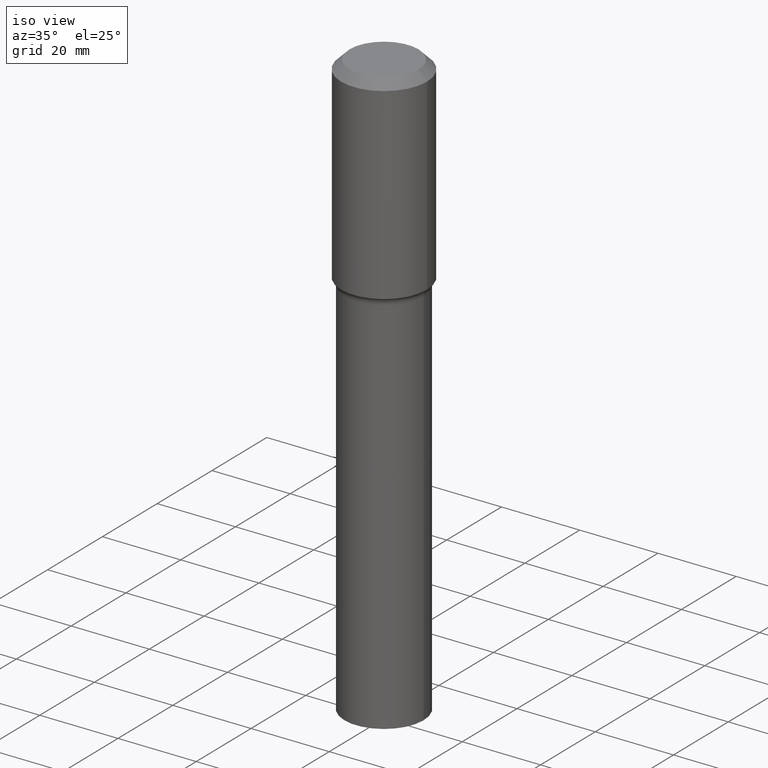
[diagram: clean part render]
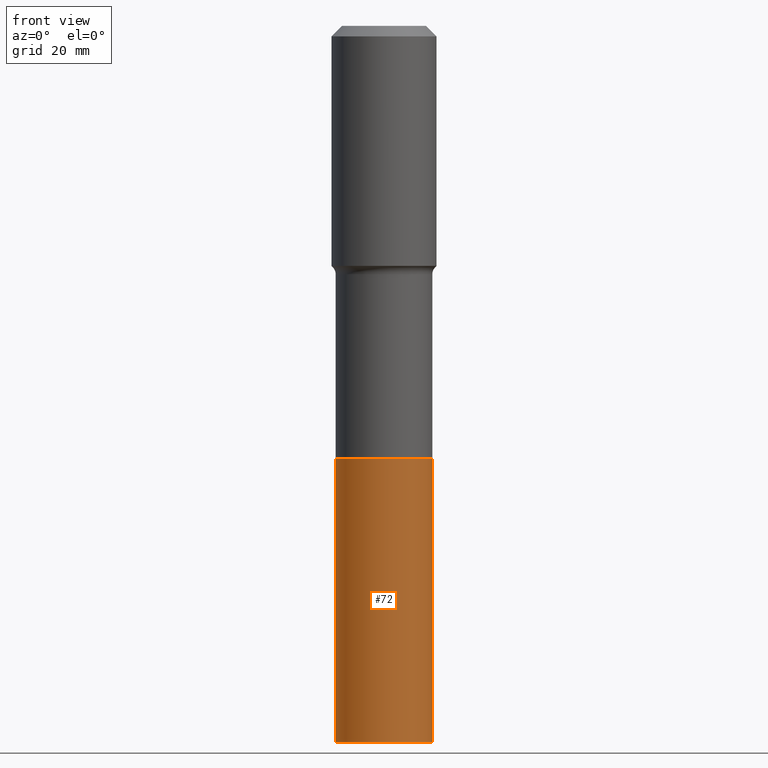
[diagram: tour spotlight — one face highlighted and labeled with its STEP entity id]
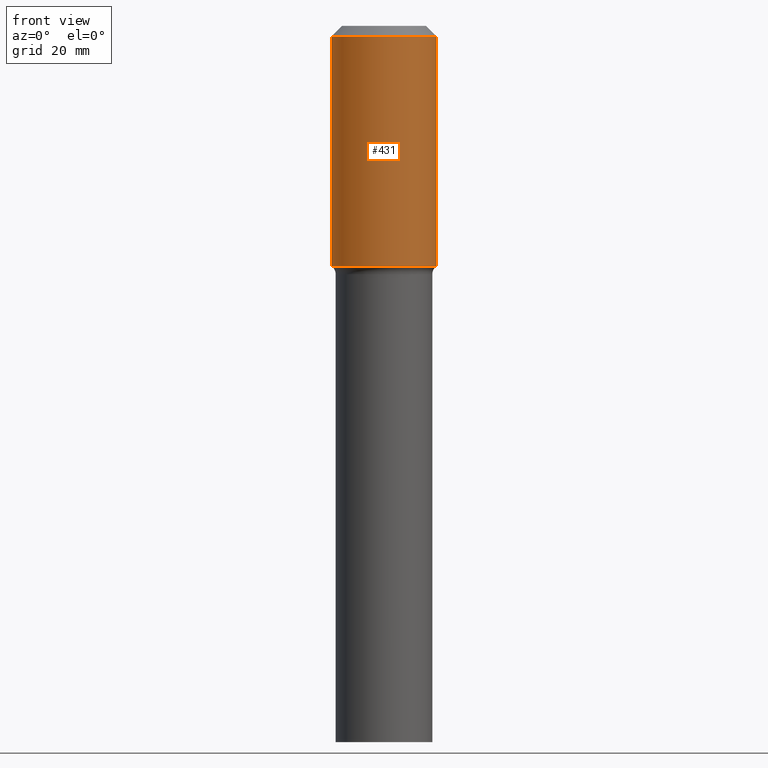
[diagram: tour spotlight — one face highlighted and labeled with its STEP entity id]
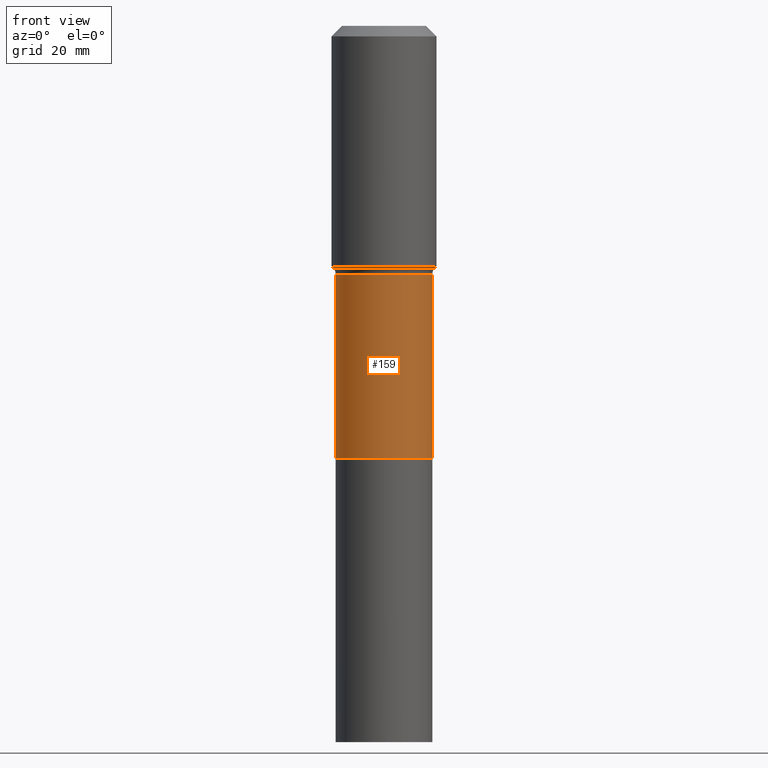
[diagram: tour spotlight — one face highlighted and labeled with its STEP entity id]
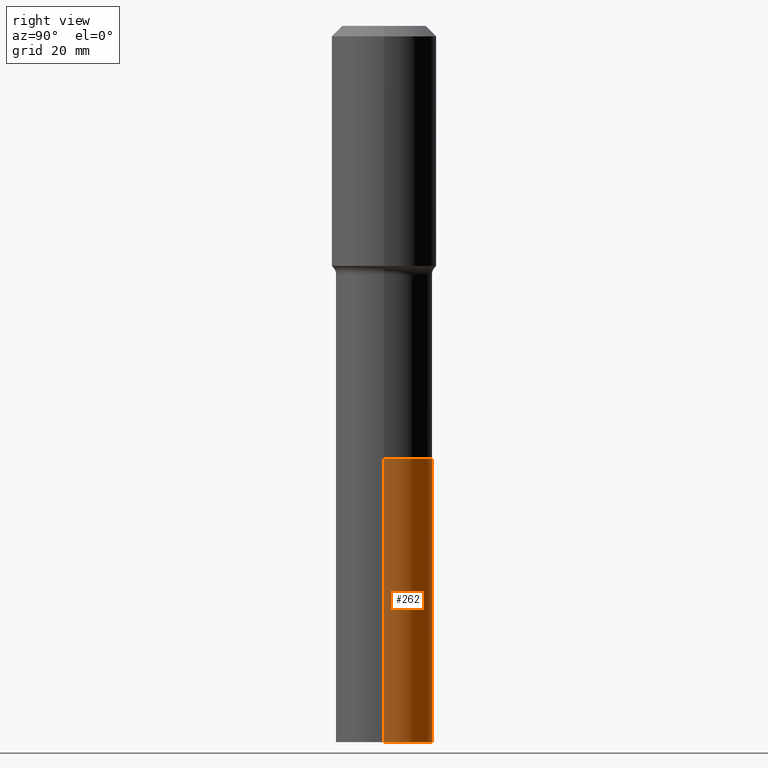
[diagram: tour spotlight — one face highlighted and labeled with its STEP entity id]
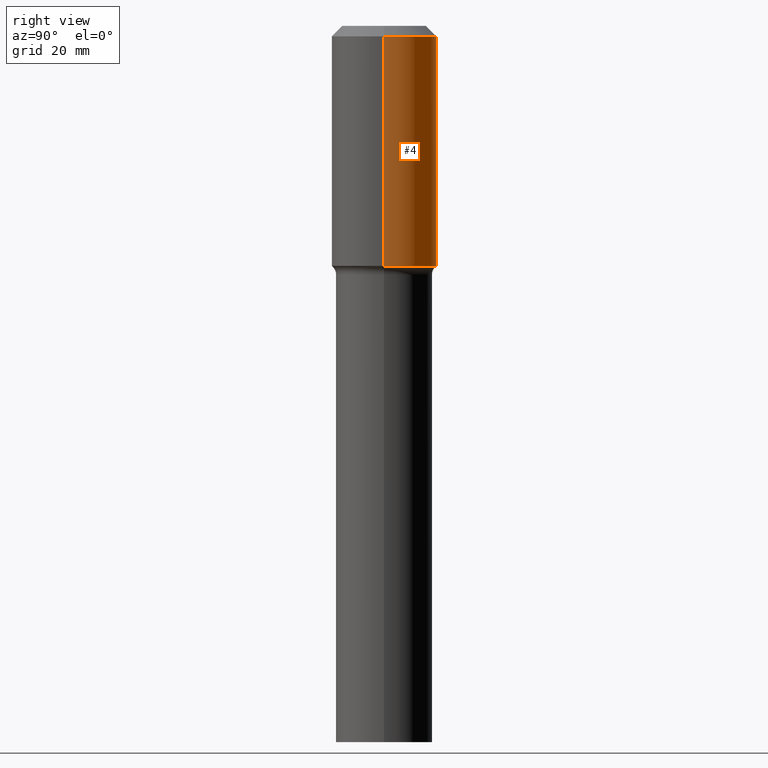
[diagram: tour spotlight — one face highlighted and labeled with its STEP entity id]
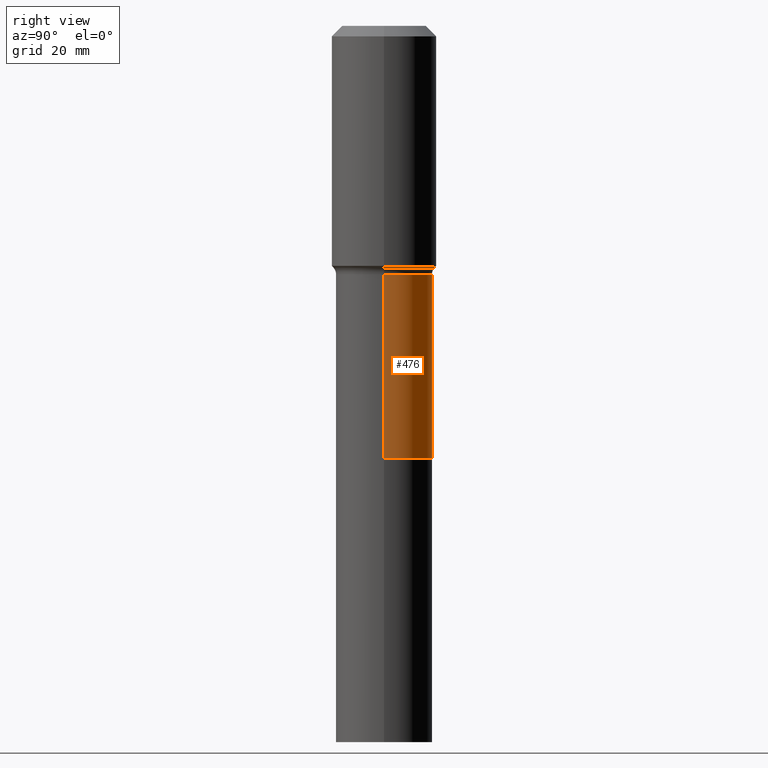
[diagram: tour spotlight — one face highlighted and labeled with its STEP entity id]
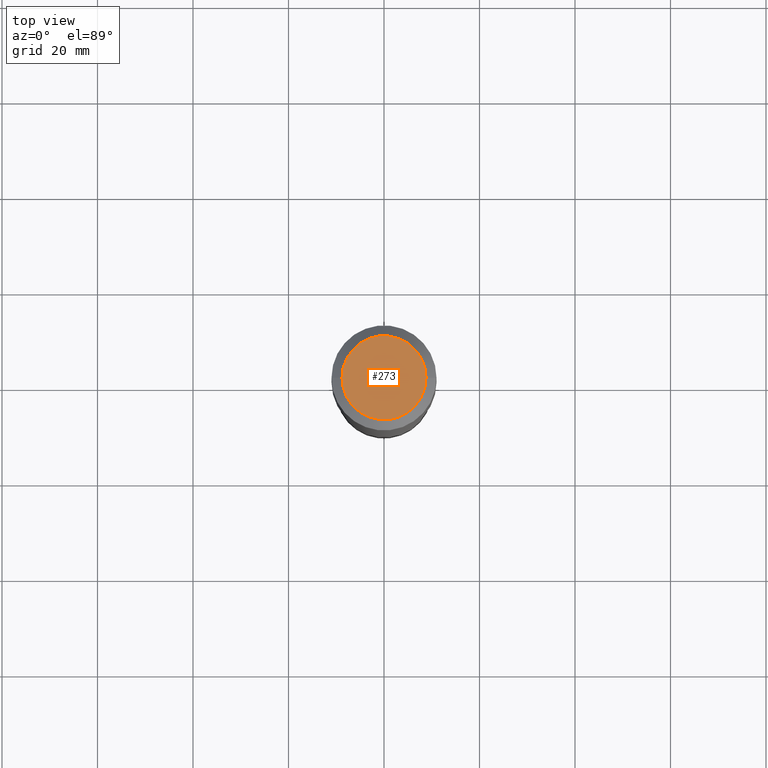
[diagram: tour spotlight — one face highlighted and labeled with its STEP entity id]
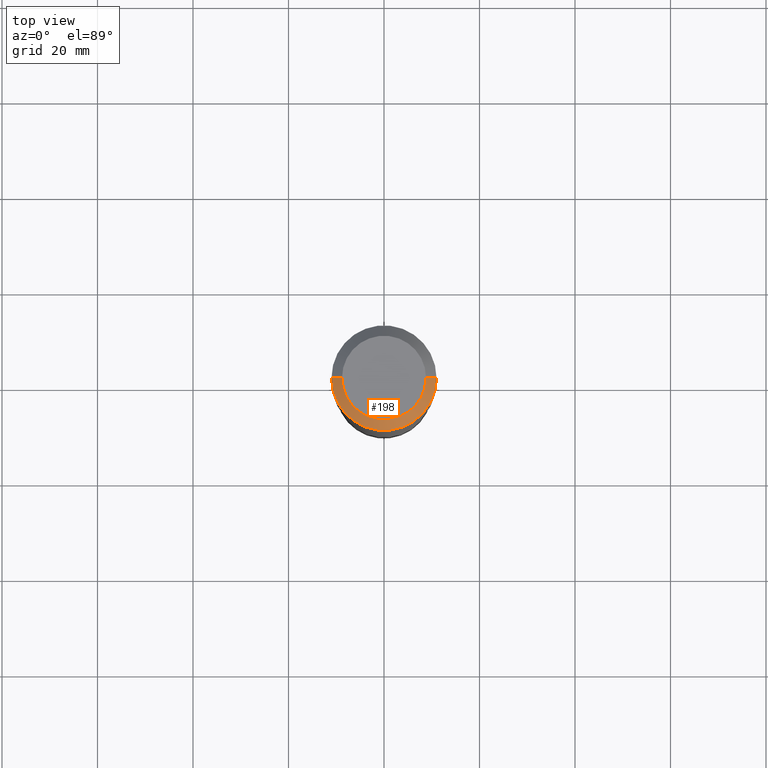
[diagram: tour spotlight — one face highlighted and labeled with its STEP entity id]
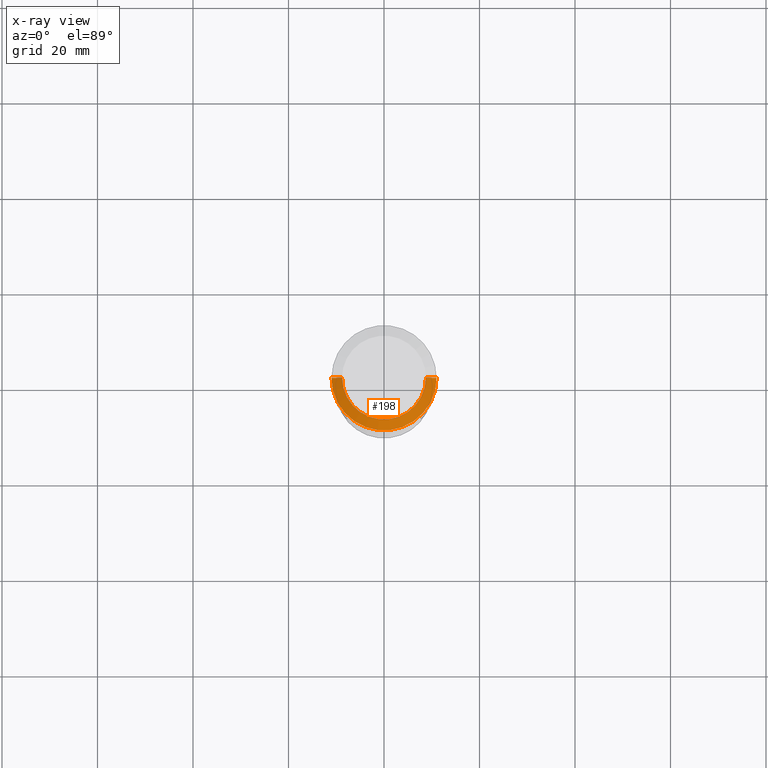
[diagram: x-ray of the same camera — body ghosted, this tour face saturated]
A machine part: a face-by-face anatomy tour. The part has 18 B-rep faces; the first image is the clean iso view, then the 8 largest visible faces are spotlighted one at a time (largest first), each with its STEP entity span.

Face 1 — front view, entity #72. In plain terms, the highlighted cylindrical surface (partial cylindrical patch) has radius 10.1206 mm, axis along (-0, 0, 1).
Definition (entity closure, byte-faithful):
#7 = EDGE_CURVE ( 'NONE', #50, #20, #483, .T. ) ;
#20 = VERTEX_POINT ( 'NONE', #220 ) ;
#50 = VERTEX_POINT ( 'NONE', #417 ) ;
#53 = VERTEX_POINT ( 'NONE', #455 ) ;
#55 = CARTESIAN_POINT ( 'NONE',  ( -0.3984500000000000264, -9.631685108364488032E-15, -3.569499999999999673 ) ) ;
#61 = ORIENTED_EDGE ( 'NONE', *, *, #415, .T. ) ;
#64 = ORIENTED_EDGE ( 'NONE', *, *, #81, .F. ) ;
#65 = CARTESIAN_POINT ( 'NONE',  ( 8.729100903677844984E-29, -1.246284263900060702E-14, -3.569499999999999673 ) ) ;
#69 = CYLINDRICAL_SURFACE ( 'NONE', #132, 0.3984500000000000264 ) ;
#72 = ADVANCED_FACE ( 'NONE', ( #429 ), #69, .T. ) ;
#81 = EDGE_CURVE ( 'NONE', #53, #50, #155, .T. ) ;
#96 = CARTESIAN_POINT ( 'NONE',  ( 0.3984500000000000264, -1.524520411792469959E-14, -3.569499999999999673 ) ) ;
#99 = DIRECTION ( 'NONE',  ( 1.000000000000000000, -6.982962677686264344E-15, 0.000000000000000000 ) ) ;
#132 = AXIS2_PLACEMENT_3D ( 'NONE', #65, #349, #99 ) ;
#143 = VERTEX_POINT ( 'NONE', #470 ) ;
#155 = LINE ( 'NONE', #55, #481 ) ;
#169 = AXIS2_PLACEMENT_3D ( 'NONE', #191, #467, #342 ) ;
#191 = CARTESIAN_POINT ( 'NONE',  ( 8.729100903677844984E-29, -1.246284263900060702E-14, -3.569499999999999673 ) ) ;
#194 = EDGE_LOOP ( 'NONE', ( #64, #61, #497, #294 ) ) ;
#204 = VECTOR ( 'NONE', #325, 39.37007874015748143 ) ;
#220 = CARTESIAN_POINT ( 'NONE',  ( 0.3984500000000000264, -1.524520411792469959E-14, -3.569499999999999673 ) ) ;
#263 = DIRECTION ( 'NONE',  ( -2.445468806185136877E-29, 3.491481338843145188E-15, 1.000000000000000000 ) ) ;
#271 = DIRECTION ( 'NONE',  ( -2.445468806185136597E-29, 3.491481338843145583E-15, 1.000000000000000000 ) ) ;
#294 = ORIENTED_EDGE ( 'NONE', *, *, #7, .F. ) ;
#325 = DIRECTION ( 'NONE',  ( -2.445468806185136877E-29, 3.491481338843145188E-15, 1.000000000000000000 ) ) ;
#334 = CARTESIAN_POINT ( 'NONE',  ( 1.444171603492632270E-28, -2.061894304653819197E-14, -5.905499999999999972 ) ) ;
#339 = EDGE_CURVE ( 'NONE', #143, #20, #362, .T. ) ;
#342 = DIRECTION ( 'NONE',  ( 1.000000000000000000, -6.982962677686264344E-15, 0.000000000000000000 ) ) ;
#349 = DIRECTION ( 'NONE',  ( -2.445468806185136597E-29, 3.491481338843145583E-15, 1.000000000000000000 ) ) ;
#351 = AXIS2_PLACEMENT_3D ( 'NONE', #334, #271, #498 ) ;
#362 = LINE ( 'NONE', #96, #204 ) ;
#415 = EDGE_CURVE ( 'NONE', #53, #143, #509, .T. ) ;
#417 = CARTESIAN_POINT ( 'NONE',  ( -0.3984500000000000264, -1.370973531213328130E-14, -3.569499999999999673 ) ) ;
#429 = FACE_OUTER_BOUND ( 'NONE', #194, .T. ) ;
#455 = CARTESIAN_POINT ( 'NONE',  ( -0.3984500000000000264, -1.370973531213328130E-14, -5.905499999999999972 ) ) ;
#467 = DIRECTION ( 'NONE',  ( -2.445468806185136597E-29, 3.491481338843145583E-15, 1.000000000000000000 ) ) ;
#470 = CARTESIAN_POINT ( 'NONE',  ( 0.3984500000000000264, -2.340130452546228612E-14, -5.905499999999999972 ) ) ;
#481 = VECTOR ( 'NONE', #263, 39.37007874015748143 ) ;
#483 = CIRCLE ( 'NONE', #169, 0.3984500000000000264 ) ;
#497 = ORIENTED_EDGE ( 'NONE', *, *, #339, .T. ) ;
#498 = DIRECTION ( 'NONE',  ( 1.000000000000000000, -6.982962677686264344E-15, 0.000000000000000000 ) ) ;
#509 = CIRCLE ( 'NONE', #351, 0.3984500000000000264 ) ;

Face 2 — front view, entity #431. In plain terms, the highlighted cylindrical surface (partial cylindrical patch) has radius 10.9995 mm, axis along (-0, 0, 1).
Definition (entity closure, byte-faithful):
#14 = CARTESIAN_POINT ( 'NONE',  ( 0.000000000000000000, 0.000000000000000000, 0.000000000000000000 ) ) ;
#17 = AXIS2_PLACEMENT_3D ( 'NONE', #14, #107, #422 ) ;
#21 = CARTESIAN_POINT ( 'NONE',  ( 2.118020533036960747E-30, -3.023971987572067913E-16, -0.08661000000000056154 ) ) ;
#30 = CARTESIAN_POINT ( 'NONE',  ( 0.4330500000000000460, -3.326369186329244629E-15, -0.08661000000000056154 ) ) ;
#32 = EDGE_CURVE ( 'NONE', #92, #259, #84, .T. ) ;
#33 = VECTOR ( 'NONE', #241, 39.37007874015748143 ) ;
#35 = CARTESIAN_POINT ( 'NONE',  ( -0.4330500000000001570, 3.077005317209114971E-15, -2.130144840834887965E-29 ) ) ;
#57 = CYLINDRICAL_SURFACE ( 'NONE', #17, 0.4330500000000001570 ) ;
#84 = CIRCLE ( 'NONE', #295, 0.4330500000000002681 ) ;
#92 = VERTEX_POINT ( 'NONE', #301 ) ;
#107 = DIRECTION ( 'NONE',  ( -2.445468806185136597E-29, 3.491481338843145583E-15, 1.000000000000000000 ) ) ;
#110 = VERTEX_POINT ( 'NONE', #190 ) ;
#139 = EDGE_CURVE ( 'NONE', #92, #110, #193, .T. ) ;
#170 = LINE ( 'NONE', #437, #33 ) ;
#177 = CIRCLE ( 'NONE', #466, 0.4330500000000000460 ) ;
#184 = FACE_OUTER_BOUND ( 'NONE', #464, .T. ) ;
#190 = CARTESIAN_POINT ( 'NONE',  ( -0.4330500000000000460, -5.288101724469795509E-16, -0.08661000000000056154 ) ) ;
#193 = LINE ( 'NONE', #35, #242 ) ;
#196 = DIRECTION ( 'NONE',  ( 1.000000000000000000, -6.982962677686266711E-15, 0.000000000000000000 ) ) ;
#218 = ORIENTED_EDGE ( 'NONE', *, *, #32, .T. ) ;
#229 = DIRECTION ( 'NONE',  ( 1.000000000000000000, -6.982962677686266711E-15, 0.000000000000000000 ) ) ;
#241 = DIRECTION ( 'NONE',  ( -2.445468806185136877E-29, 3.491481338843145188E-15, 1.000000000000000000 ) ) ;
#242 = VECTOR ( 'NONE', #307, 39.37007874015748143 ) ;
#258 = VERTEX_POINT ( 'NONE', #30 ) ;
#259 = VERTEX_POINT ( 'NONE', #272 ) ;
#267 = DIRECTION ( 'NONE',  ( -2.445468806185136597E-29, 3.491481338843145583E-15, 1.000000000000000000 ) ) ;
#272 = CARTESIAN_POINT ( 'NONE',  ( 0.4330500000000002681, -9.933205768127022062E-15, -1.978883204583949729 ) ) ;
#295 = AXIS2_PLACEMENT_3D ( 'NONE', #387, #267, #229 ) ;
#301 = CARTESIAN_POINT ( 'NONE',  ( -0.4330500000000002681, -3.832228463345867380E-15, -1.978883204583949729 ) ) ;
#307 = DIRECTION ( 'NONE',  ( -2.445468806185136877E-29, 3.491481338843145188E-15, 1.000000000000000000 ) ) ;
#386 = EDGE_CURVE ( 'NONE', #110, #258, #177, .T. ) ;
#387 = CARTESIAN_POINT ( 'NONE',  ( 4.839297147893728849E-29, -6.909233780554982350E-15, -1.978883204583949729 ) ) ;
#388 = DIRECTION ( 'NONE',  ( -2.445468806185136597E-29, 3.491481338843145583E-15, 1.000000000000000000 ) ) ;
#422 = DIRECTION ( 'NONE',  ( 1.000000000000000000, -6.982962677686266711E-15, 4.876176775795935793E-29 ) ) ;
#426 = ORIENTED_EDGE ( 'NONE', *, *, #139, .F. ) ;
#427 = ORIENTED_EDGE ( 'NONE', *, *, #492, .T. ) ;
#431 = ADVANCED_FACE ( 'NONE', ( #184 ), #57, .T. ) ;
#437 = CARTESIAN_POINT ( 'NONE',  ( 0.4330500000000001570, -3.023971987572038922E-15, 2.111628352758430875E-29 ) ) ;
#464 = EDGE_LOOP ( 'NONE', ( #426, #218, #427, #495 ) ) ;
#466 = AXIS2_PLACEMENT_3D ( 'NONE', #21, #388, #196 ) ;
#492 = EDGE_CURVE ( 'NONE', #259, #258, #170, .T. ) ;
#495 = ORIENTED_EDGE ( 'NONE', *, *, #386, .F. ) ;

Face 3 — front view, entity #159. In plain terms, the highlighted cylindrical surface (partial cylindrical patch) has radius 10.1206 mm, axis along (-0, 0, 1).
Definition (entity closure, byte-faithful):
#6 = AXIS2_PLACEMENT_3D ( 'NONE', #232, #419, #158 ) ;
#13 = ORIENTED_EDGE ( 'NONE', *, *, #488, .F. ) ;
#40 = EDGE_CURVE ( 'NONE', #141, #424, #223, .T. ) ;
#73 = DIRECTION ( 'NONE',  ( -2.445468806185136597E-29, 3.491481338843145583E-15, 1.000000000000000000 ) ) ;
#74 = CARTESIAN_POINT ( 'NONE',  ( -0.3984500000000000264, -6.973794939170142747E-15, -3.568999999999999506 ) ) ;
#76 = VECTOR ( 'NONE', #145, 39.37007874015748143 ) ;
#82 = DIRECTION ( 'NONE',  ( -2.445468806185136597E-29, 3.491481338843145583E-15, 1.000000000000000000 ) ) ;
#104 = EDGE_CURVE ( 'NONE', #418, #141, #323, .T. ) ;
#122 = CARTESIAN_POINT ( 'NONE',  ( -0.3984499999999999709, 2.831157530636118984E-15, -1.959949686712066901E-29 ) ) ;
#141 = VERTEX_POINT ( 'NONE', #164 ) ;
#145 = DIRECTION ( 'NONE',  ( -2.445468806185136877E-29, 3.491481338843145188E-15, 1.000000000000000000 ) ) ;
#158 = DIRECTION ( 'NONE',  ( 1.000000000000000000, -6.982962677686265922E-15, 4.876176775795935793E-29 ) ) ;
#159 = ADVANCED_FACE ( 'NONE', ( #237 ), #392, .T. ) ;
#164 = CARTESIAN_POINT ( 'NONE',  ( 0.3984500000000000264, -1.524345837725527730E-14, -3.568999999999999506 ) ) ;
#207 = DIRECTION ( 'NONE',  ( -2.445468806185136877E-29, 3.491481338843145188E-15, 1.000000000000000000 ) ) ;
#222 = DIRECTION ( 'NONE',  ( 1.000000000000000000, -6.982962677686264344E-15, 0.000000000000000000 ) ) ;
#223 = LINE ( 'NONE', #496, #76 ) ;
#226 = VECTOR ( 'NONE', #207, 39.37007874015748143 ) ;
#232 = CARTESIAN_POINT ( 'NONE',  ( 0.000000000000000000, 0.000000000000000000, 0.000000000000000000 ) ) ;
#237 = FACE_OUTER_BOUND ( 'NONE', #333, .T. ) ;
#244 = LINE ( 'NONE', #122, #226 ) ;
#245 = AXIS2_PLACEMENT_3D ( 'NONE', #270, #73, #222 ) ;
#252 = ORIENTED_EDGE ( 'NONE', *, *, #40, .T. ) ;
#270 = CARTESIAN_POINT ( 'NONE',  ( 8.727878169274752182E-29, -1.246109689833118472E-14, -3.568999999999999506 ) ) ;
#291 = EDGE_CURVE ( 'NONE', #418, #343, #244, .T. ) ;
#309 = ORIENTED_EDGE ( 'NONE', *, *, #104, .T. ) ;
#323 = CIRCLE ( 'NONE', #245, 0.3984500000000000264 ) ;
#326 = CARTESIAN_POINT ( 'NONE',  ( -0.3984499999999998598, -6.973794939170143536E-15, -2.047499999999999432 ) ) ;
#333 = EDGE_LOOP ( 'NONE', ( #346, #309, #252, #13 ) ) ;
#336 = CIRCLE ( 'NONE', #435, 0.3984499999999998598 ) ;
#343 = VERTEX_POINT ( 'NONE', #326 ) ;
#346 = ORIENTED_EDGE ( 'NONE', *, *, #291, .F. ) ;
#356 = DIRECTION ( 'NONE',  ( 1.000000000000000000, -6.982962677686269866E-15, 0.000000000000000000 ) ) ;
#372 = CARTESIAN_POINT ( 'NONE',  ( 0.3984499999999998598, -9.931169520205431311E-15, -2.047499999999999432 ) ) ;
#392 = CYLINDRICAL_SURFACE ( 'NONE', #6, 0.3984499999999999709 ) ;
#418 = VERTEX_POINT ( 'NONE', #74 ) ;
#419 = DIRECTION ( 'NONE',  ( -2.445468806185136597E-29, 3.491481338843145583E-15, 1.000000000000000000 ) ) ;
#424 = VERTEX_POINT ( 'NONE', #372 ) ;
#435 = AXIS2_PLACEMENT_3D ( 'NONE', #441, #82, #356 ) ;
#441 = CARTESIAN_POINT ( 'NONE',  ( 5.007097380664065231E-29, -7.148808041281338737E-15, -2.047499999999999432 ) ) ;
#488 = EDGE_CURVE ( 'NONE', #343, #424, #336, .T. ) ;
#496 = CARTESIAN_POINT ( 'NONE',  ( 0.3984499999999999709, -2.782361478924092573E-15, 1.942912636315890449E-29 ) ) ;

Face 4 — right view, entity #262. In plain terms, the highlighted cylindrical surface (partial cylindrical patch) has radius 10.1206 mm, axis along (-0, 0, 1).
Definition (entity closure, byte-faithful):
#2 = CIRCLE ( 'NONE', #316, 0.3984500000000000264 ) ;
#20 = VERTEX_POINT ( 'NONE', #220 ) ;
#23 = DIRECTION ( 'NONE',  ( -2.445468806185136597E-29, 3.491481338843145583E-15, 1.000000000000000000 ) ) ;
#24 = ORIENTED_EDGE ( 'NONE', *, *, #175, .T. ) ;
#26 = EDGE_LOOP ( 'NONE', ( #24, #420, #491, #264 ) ) ;
#47 = CIRCLE ( 'NONE', #318, 0.3984500000000000264 ) ;
#50 = VERTEX_POINT ( 'NONE', #417 ) ;
#53 = VERTEX_POINT ( 'NONE', #455 ) ;
#55 = CARTESIAN_POINT ( 'NONE',  ( -0.3984500000000000264, -9.631685108364488032E-15, -3.569499999999999673 ) ) ;
#62 = DIRECTION ( 'NONE',  ( 1.000000000000000000, -6.982962677686264344E-15, 0.000000000000000000 ) ) ;
#81 = EDGE_CURVE ( 'NONE', #53, #50, #155, .T. ) ;
#96 = CARTESIAN_POINT ( 'NONE',  ( 0.3984500000000000264, -1.524520411792469959E-14, -3.569499999999999673 ) ) ;
#108 = CYLINDRICAL_SURFACE ( 'NONE', #199, 0.3984500000000000264 ) ;
#112 = CARTESIAN_POINT ( 'NONE',  ( 1.444171603492632270E-28, -2.061894304653819197E-14, -5.905499999999999972 ) ) ;
#143 = VERTEX_POINT ( 'NONE', #470 ) ;
#155 = LINE ( 'NONE', #55, #481 ) ;
#175 = EDGE_CURVE ( 'NONE', #143, #53, #2, .T. ) ;
#187 = DIRECTION ( 'NONE',  ( -2.445468806185136597E-29, 3.491481338843145583E-15, 1.000000000000000000 ) ) ;
#199 = AXIS2_PLACEMENT_3D ( 'NONE', #430, #261, #62 ) ;
#204 = VECTOR ( 'NONE', #325, 39.37007874015748143 ) ;
#220 = CARTESIAN_POINT ( 'NONE',  ( 0.3984500000000000264, -1.524520411792469959E-14, -3.569499999999999673 ) ) ;
#225 = CARTESIAN_POINT ( 'NONE',  ( 8.729100903677844984E-29, -1.246284263900060702E-14, -3.569499999999999673 ) ) ;
#261 = DIRECTION ( 'NONE',  ( -2.445468806185136597E-29, 3.491481338843145583E-15, 1.000000000000000000 ) ) ;
#262 = ADVANCED_FACE ( 'NONE', ( #269 ), #108, .T. ) ;
#263 = DIRECTION ( 'NONE',  ( -2.445468806185136877E-29, 3.491481338843145188E-15, 1.000000000000000000 ) ) ;
#264 = ORIENTED_EDGE ( 'NONE', *, *, #339, .F. ) ;
#269 = FACE_OUTER_BOUND ( 'NONE', #26, .T. ) ;
#316 = AXIS2_PLACEMENT_3D ( 'NONE', #112, #23, #428 ) ;
#318 = AXIS2_PLACEMENT_3D ( 'NONE', #225, #187, #338 ) ;
#325 = DIRECTION ( 'NONE',  ( -2.445468806185136877E-29, 3.491481338843145188E-15, 1.000000000000000000 ) ) ;
#338 = DIRECTION ( 'NONE',  ( 1.000000000000000000, -6.982962677686264344E-15, 0.000000000000000000 ) ) ;
#339 = EDGE_CURVE ( 'NONE', #143, #20, #362, .T. ) ;
#362 = LINE ( 'NONE', #96, #204 ) ;
#417 = CARTESIAN_POINT ( 'NONE',  ( -0.3984500000000000264, -1.370973531213328130E-14, -3.569499999999999673 ) ) ;
#420 = ORIENTED_EDGE ( 'NONE', *, *, #81, .T. ) ;
#428 = DIRECTION ( 'NONE',  ( 1.000000000000000000, -6.982962677686264344E-15, 0.000000000000000000 ) ) ;
#430 = CARTESIAN_POINT ( 'NONE',  ( 8.729100903677844984E-29, -1.246284263900060702E-14, -3.569499999999999673 ) ) ;
#448 = EDGE_CURVE ( 'NONE', #20, #50, #47, .T. ) ;
#455 = CARTESIAN_POINT ( 'NONE',  ( -0.3984500000000000264, -1.370973531213328130E-14, -5.905499999999999972 ) ) ;
#470 = CARTESIAN_POINT ( 'NONE',  ( 0.3984500000000000264, -2.340130452546228612E-14, -5.905499999999999972 ) ) ;
#481 = VECTOR ( 'NONE', #263, 39.37007874015748143 ) ;
#491 = ORIENTED_EDGE ( 'NONE', *, *, #448, .F. ) ;

Face 5 — right view, entity #4. In plain terms, the highlighted cylindrical surface (partial cylindrical patch) has radius 10.9995 mm, axis along (-0, 0, 1).
Definition (entity closure, byte-faithful):
#4 = ADVANCED_FACE ( 'NONE', ( #234 ), #505, .T. ) ;
#16 = CIRCLE ( 'NONE', #453, 0.4330500000000002681 ) ;
#18 = ORIENTED_EDGE ( 'NONE', *, *, #167, .T. ) ;
#30 = CARTESIAN_POINT ( 'NONE',  ( 0.4330500000000000460, -3.326369186329244629E-15, -0.08661000000000056154 ) ) ;
#33 = VECTOR ( 'NONE', #241, 39.37007874015748143 ) ;
#35 = CARTESIAN_POINT ( 'NONE',  ( -0.4330500000000001570, 3.077005317209114971E-15, -2.130144840834887965E-29 ) ) ;
#52 = CARTESIAN_POINT ( 'NONE',  ( 0.000000000000000000, 0.000000000000000000, 0.000000000000000000 ) ) ;
#75 = DIRECTION ( 'NONE',  ( 1.000000000000000000, -6.982962677686266711E-15, 0.000000000000000000 ) ) ;
#92 = VERTEX_POINT ( 'NONE', #301 ) ;
#110 = VERTEX_POINT ( 'NONE', #190 ) ;
#139 = EDGE_CURVE ( 'NONE', #92, #110, #193, .T. ) ;
#160 = EDGE_LOOP ( 'NONE', ( #18, #452, #302, #487 ) ) ;
#162 = DIRECTION ( 'NONE',  ( 1.000000000000000000, -6.982962677686266711E-15, 0.000000000000000000 ) ) ;
#167 = EDGE_CURVE ( 'NONE', #259, #92, #16, .T. ) ;
#168 = AXIS2_PLACEMENT_3D ( 'NONE', #461, #299, #75 ) ;
#170 = LINE ( 'NONE', #437, #33 ) ;
#188 = CIRCLE ( 'NONE', #168, 0.4330500000000000460 ) ;
#190 = CARTESIAN_POINT ( 'NONE',  ( -0.4330500000000000460, -5.288101724469795509E-16, -0.08661000000000056154 ) ) ;
#193 = LINE ( 'NONE', #35, #242 ) ;
#231 = EDGE_CURVE ( 'NONE', #258, #110, #188, .T. ) ;
#234 = FACE_OUTER_BOUND ( 'NONE', #160, .T. ) ;
#241 = DIRECTION ( 'NONE',  ( -2.445468806185136877E-29, 3.491481338843145188E-15, 1.000000000000000000 ) ) ;
#242 = VECTOR ( 'NONE', #307, 39.37007874015748143 ) ;
#257 = CARTESIAN_POINT ( 'NONE',  ( 4.839297147893728849E-29, -6.909233780554982350E-15, -1.978883204583949729 ) ) ;
#258 = VERTEX_POINT ( 'NONE', #30 ) ;
#259 = VERTEX_POINT ( 'NONE', #272 ) ;
#272 = CARTESIAN_POINT ( 'NONE',  ( 0.4330500000000002681, -9.933205768127022062E-15, -1.978883204583949729 ) ) ;
#299 = DIRECTION ( 'NONE',  ( -2.445468806185136597E-29, 3.491481338843145583E-15, 1.000000000000000000 ) ) ;
#301 = CARTESIAN_POINT ( 'NONE',  ( -0.4330500000000002681, -3.832228463345867380E-15, -1.978883204583949729 ) ) ;
#302 = ORIENTED_EDGE ( 'NONE', *, *, #231, .F. ) ;
#307 = DIRECTION ( 'NONE',  ( -2.445468806185136877E-29, 3.491481338843145188E-15, 1.000000000000000000 ) ) ;
#308 = DIRECTION ( 'NONE',  ( 1.000000000000000000, -6.982962677686266711E-15, 4.876176775795935793E-29 ) ) ;
#354 = DIRECTION ( 'NONE',  ( -2.445468806185136597E-29, 3.491481338843145583E-15, 1.000000000000000000 ) ) ;
#400 = AXIS2_PLACEMENT_3D ( 'NONE', #52, #413, #308 ) ;
#413 = DIRECTION ( 'NONE',  ( -2.445468806185136597E-29, 3.491481338843145583E-15, 1.000000000000000000 ) ) ;
#437 = CARTESIAN_POINT ( 'NONE',  ( 0.4330500000000001570, -3.023971987572038922E-15, 2.111628352758430875E-29 ) ) ;
#452 = ORIENTED_EDGE ( 'NONE', *, *, #139, .T. ) ;
#453 = AXIS2_PLACEMENT_3D ( 'NONE', #257, #354, #162 ) ;
#461 = CARTESIAN_POINT ( 'NONE',  ( 2.118020533036960747E-30, -3.023971987572067913E-16, -0.08661000000000056154 ) ) ;
#487 = ORIENTED_EDGE ( 'NONE', *, *, #492, .F. ) ;
#492 = EDGE_CURVE ( 'NONE', #259, #258, #170, .T. ) ;
#505 = CYLINDRICAL_SURFACE ( 'NONE', #400, 0.4330500000000001570 ) ;

Face 6 — right view, entity #476. In plain terms, the highlighted cylindrical surface (partial cylindrical patch) has radius 10.1206 mm, axis along (-0, 0, 1).
Definition (entity closure, byte-faithful):
#8 = ORIENTED_EDGE ( 'NONE', *, *, #40, .F. ) ;
#40 = EDGE_CURVE ( 'NONE', #141, #424, #223, .T. ) ;
#74 = CARTESIAN_POINT ( 'NONE',  ( -0.3984500000000000264, -6.973794939170142747E-15, -3.568999999999999506 ) ) ;
#76 = VECTOR ( 'NONE', #145, 39.37007874015748143 ) ;
#97 = AXIS2_PLACEMENT_3D ( 'NONE', #266, #102, #511 ) ;
#102 = DIRECTION ( 'NONE',  ( -2.445468806185136597E-29, 3.491481338843145583E-15, 1.000000000000000000 ) ) ;
#106 = ORIENTED_EDGE ( 'NONE', *, *, #291, .T. ) ;
#115 = EDGE_CURVE ( 'NONE', #141, #418, #209, .T. ) ;
#122 = CARTESIAN_POINT ( 'NONE',  ( -0.3984499999999999709, 2.831157530636118984E-15, -1.959949686712066901E-29 ) ) ;
#131 = CARTESIAN_POINT ( 'NONE',  ( 0.000000000000000000, 0.000000000000000000, 0.000000000000000000 ) ) ;
#133 = AXIS2_PLACEMENT_3D ( 'NONE', #131, #480, #280 ) ;
#141 = VERTEX_POINT ( 'NONE', #164 ) ;
#145 = DIRECTION ( 'NONE',  ( -2.445468806185136877E-29, 3.491481338843145188E-15, 1.000000000000000000 ) ) ;
#164 = CARTESIAN_POINT ( 'NONE',  ( 0.3984500000000000264, -1.524345837725527730E-14, -3.568999999999999506 ) ) ;
#181 = EDGE_CURVE ( 'NONE', #424, #343, #442, .T. ) ;
#207 = DIRECTION ( 'NONE',  ( -2.445468806185136877E-29, 3.491481338843145188E-15, 1.000000000000000000 ) ) ;
#209 = CIRCLE ( 'NONE', #97, 0.3984500000000000264 ) ;
#223 = LINE ( 'NONE', #496, #76 ) ;
#226 = VECTOR ( 'NONE', #207, 39.37007874015748143 ) ;
#244 = LINE ( 'NONE', #122, #226 ) ;
#254 = ORIENTED_EDGE ( 'NONE', *, *, #115, .T. ) ;
#260 = FACE_OUTER_BOUND ( 'NONE', #502, .T. ) ;
#266 = CARTESIAN_POINT ( 'NONE',  ( 8.727878169274752182E-29, -1.246109689833118472E-14, -3.568999999999999506 ) ) ;
#280 = DIRECTION ( 'NONE',  ( 1.000000000000000000, -6.982962677686265922E-15, 4.876176775795935793E-29 ) ) ;
#291 = EDGE_CURVE ( 'NONE', #418, #343, #244, .T. ) ;
#326 = CARTESIAN_POINT ( 'NONE',  ( -0.3984499999999998598, -6.973794939170143536E-15, -2.047499999999999432 ) ) ;
#343 = VERTEX_POINT ( 'NONE', #326 ) ;
#347 = CYLINDRICAL_SURFACE ( 'NONE', #133, 0.3984499999999999709 ) ;
#352 = CARTESIAN_POINT ( 'NONE',  ( 5.007097380664065231E-29, -7.148808041281338737E-15, -2.047499999999999432 ) ) ;
#371 = ORIENTED_EDGE ( 'NONE', *, *, #181, .F. ) ;
#372 = CARTESIAN_POINT ( 'NONE',  ( 0.3984499999999998598, -9.931169520205431311E-15, -2.047499999999999432 ) ) ;
#381 = DIRECTION ( 'NONE',  ( -2.445468806185136597E-29, 3.491481338843145583E-15, 1.000000000000000000 ) ) ;
#404 = AXIS2_PLACEMENT_3D ( 'NONE', #352, #381, #503 ) ;
#418 = VERTEX_POINT ( 'NONE', #74 ) ;
#424 = VERTEX_POINT ( 'NONE', #372 ) ;
#442 = CIRCLE ( 'NONE', #404, 0.3984499999999998598 ) ;
#476 = ADVANCED_FACE ( 'NONE', ( #260 ), #347, .T. ) ;
#480 = DIRECTION ( 'NONE',  ( -2.445468806185136597E-29, 3.491481338843145583E-15, 1.000000000000000000 ) ) ;
#496 = CARTESIAN_POINT ( 'NONE',  ( 0.3984499999999999709, -2.782361478924092573E-15, 1.942912636315890449E-29 ) ) ;
#502 = EDGE_LOOP ( 'NONE', ( #254, #106, #371, #8 ) ) ;
#503 = DIRECTION ( 'NONE',  ( 1.000000000000000000, -6.982962677686269866E-15, 0.000000000000000000 ) ) ;
#511 = DIRECTION ( 'NONE',  ( 1.000000000000000000, -6.982962677686264344E-15, 0.000000000000000000 ) ) ;

Face 7 — top view, entity #273. In plain terms, the highlighted planar face has unit normal (0, -0, -1).
Definition (entity closure, byte-faithful):
#66 = VERTEX_POINT ( 'NONE', #109 ) ;
#67 = DIRECTION ( 'NONE',  ( 1.000000000000000000, -6.982962677686265922E-15, 4.876202609618050646E-29 ) ) ;
#109 = CARTESIAN_POINT ( 'NONE',  ( 0.3464400000000000257, -2.825043391520069124E-15, 3.855188123734197880E-18 ) ) ;
#113 = CIRCLE ( 'NONE', #398, 0.3464400000000000257 ) ;
#123 = AXIS2_PLACEMENT_3D ( 'NONE', #235, #423, #473 ) ;
#126 = DIRECTION ( 'NONE',  ( -1.000000000000000000, 6.982962677686265922E-15, -4.876176775795935793E-29 ) ) ;
#153 = CARTESIAN_POINT ( 'NONE',  ( -0.3464400000000000257, 2.570376189436231151E-15, 3.855188123698415642E-18 ) ) ;
#176 = EDGE_CURVE ( 'NONE', #66, #468, #284, .T. ) ;
#200 = PLANE ( 'NONE',  #516 ) ;
#224 = ORIENTED_EDGE ( 'NONE', *, *, #373, .T. ) ;
#227 = FACE_OUTER_BOUND ( 'NONE', #384, .T. ) ;
#228 = ORIENTED_EDGE ( 'NONE', *, *, #176, .T. ) ;
#235 = CARTESIAN_POINT ( 'NONE',  ( -9.427742298522546243E-47, 1.346031739168365344E-32, 3.855188123715862256E-18 ) ) ;
#268 = CARTESIAN_POINT ( 'NONE',  ( -9.427742298522546243E-47, 1.346031739168365344E-32, 3.855188123715862256E-18 ) ) ;
#273 = ADVANCED_FACE ( 'NONE', ( #227 ), #200, .F. ) ;
#284 = CIRCLE ( 'NONE', #123, 0.3464400000000000257 ) ;
#287 = DIRECTION ( 'NONE',  ( 2.438088387897960049E-29, -3.491481338843145188E-15, -1.000000000000000000 ) ) ;
#373 = EDGE_CURVE ( 'NONE', #468, #66, #113, .T. ) ;
#384 = EDGE_LOOP ( 'NONE', ( #224, #228 ) ) ;
#398 = AXIS2_PLACEMENT_3D ( 'NONE', #268, #472, #67 ) ;
#423 = DIRECTION ( 'NONE',  ( -2.445468806185136597E-29, 3.491481338843145583E-15, 1.000000000000000000 ) ) ;
#433 = CARTESIAN_POINT ( 'NONE',  ( -4.713871149261273121E-47, 6.730158695841826722E-33, 1.927594061857931128E-18 ) ) ;
#468 = VERTEX_POINT ( 'NONE', #153 ) ;
#472 = DIRECTION ( 'NONE',  ( -2.445468806185136597E-29, 3.491481338843145583E-15, 1.000000000000000000 ) ) ;
#473 = DIRECTION ( 'NONE',  ( 1.000000000000000000, -6.982962677686265922E-15, 4.876202609618050646E-29 ) ) ;
#516 = AXIS2_PLACEMENT_3D ( 'NONE', #433, #287, #126 ) ;

Face 8 — top view, entity #198. An x-ray twin of the same camera follows (body ghosted, this face saturated) — the face is partly hidden behind the body. In plain terms, the highlighted conical surface has half-angle 45 deg.
Definition (entity closure, byte-faithful):
#21 = CARTESIAN_POINT ( 'NONE',  ( 2.118020533036960747E-30, -3.023971987572067913E-16, -0.08661000000000056154 ) ) ;
#30 = CARTESIAN_POINT ( 'NONE',  ( 0.4330500000000000460, -3.326369186329244629E-15, -0.08661000000000056154 ) ) ;
#42 = LINE ( 'NONE', #440, #357 ) ;
#66 = VERTEX_POINT ( 'NONE', #109 ) ;
#67 = DIRECTION ( 'NONE',  ( 1.000000000000000000, -6.982962677686265922E-15, 4.876202609618050646E-29 ) ) ;
#68 = FACE_OUTER_BOUND ( 'NONE', #161, .T. ) ;
#90 = AXIS2_PLACEMENT_3D ( 'NONE', #514, #385, #499 ) ;
#109 = CARTESIAN_POINT ( 'NONE',  ( 0.3464400000000000257, -2.825043391520069124E-15, 3.855188123734197880E-18 ) ) ;
#110 = VERTEX_POINT ( 'NONE', #190 ) ;
#113 = CIRCLE ( 'NONE', #398, 0.3464400000000000257 ) ;
#153 = CARTESIAN_POINT ( 'NONE',  ( -0.3464400000000000257, 2.570376189436231151E-15, 3.855188123698415642E-18 ) ) ;
#161 = EDGE_LOOP ( 'NONE', ( #195, #330, #253, #500 ) ) ;
#172 = CONICAL_SURFACE ( 'NONE', #90, 0.4330500000000000460, 0.7853981633974452814 ) ;
#177 = CIRCLE ( 'NONE', #466, 0.4330500000000000460 ) ;
#190 = CARTESIAN_POINT ( 'NONE',  ( -0.4330500000000000460, -5.288101724469795509E-16, -0.08661000000000056154 ) ) ;
#195 = ORIENTED_EDGE ( 'NONE', *, *, #304, .F. ) ;
#196 = DIRECTION ( 'NONE',  ( 1.000000000000000000, -6.982962677686266711E-15, 0.000000000000000000 ) ) ;
#198 = ADVANCED_FACE ( 'NONE', ( #68 ), #172, .T. ) ;
#205 = DIRECTION ( 'NONE',  ( -0.7071067811865453523, 2.468850131082234184E-15, -0.7071067811865496822 ) ) ;
#239 = LINE ( 'NONE', #401, #410 ) ;
#253 = ORIENTED_EDGE ( 'NONE', *, *, #324, .T. ) ;
#258 = VERTEX_POINT ( 'NONE', #30 ) ;
#268 = CARTESIAN_POINT ( 'NONE',  ( -9.427742298522546243E-47, 1.346031739168365344E-32, 3.855188123715862256E-18 ) ) ;
#304 = EDGE_CURVE ( 'NONE', #66, #258, #239, .T. ) ;
#324 = EDGE_CURVE ( 'NONE', #468, #110, #42, .T. ) ;
#330 = ORIENTED_EDGE ( 'NONE', *, *, #373, .F. ) ;
#357 = VECTOR ( 'NONE', #205, 39.37007874015748143 ) ;
#373 = EDGE_CURVE ( 'NONE', #468, #66, #113, .T. ) ;
#385 = DIRECTION ( 'NONE',  ( 2.445468806185136597E-29, -3.491481338843145583E-15, -1.000000000000000000 ) ) ;
#386 = EDGE_CURVE ( 'NONE', #110, #258, #177, .T. ) ;
#388 = DIRECTION ( 'NONE',  ( -2.445468806185136597E-29, 3.491481338843145583E-15, 1.000000000000000000 ) ) ;
#398 = AXIS2_PLACEMENT_3D ( 'NONE', #268, #472, #67 ) ;
#401 = CARTESIAN_POINT ( 'NONE',  ( 0.4330500000000000460, -3.273335856692168975E-15, -0.08661000000000056154 ) ) ;
#403 = DIRECTION ( 'NONE',  ( 0.7071067811865453523, -7.319954787623248157E-15, -0.7071067811865496822 ) ) ;
#410 = VECTOR ( 'NONE', #403, 39.37007874015748143 ) ;
#440 = CARTESIAN_POINT ( 'NONE',  ( -0.4330500000000000460, 2.721574788814831638E-15, -0.08661000000000056154 ) ) ;
#466 = AXIS2_PLACEMENT_3D ( 'NONE', #21, #388, #196 ) ;
#468 = VERTEX_POINT ( 'NONE', #153 ) ;
#472 = DIRECTION ( 'NONE',  ( -2.445468806185136597E-29, 3.491481338843145583E-15, 1.000000000000000000 ) ) ;
#499 = DIRECTION ( 'NONE',  ( -1.000000000000000000, 6.982962677686266711E-15, 0.000000000000000000 ) ) ;
#500 = ORIENTED_EDGE ( 'NONE', *, *, #386, .T. ) ;
#514 = CARTESIAN_POINT ( 'NONE',  ( 2.118020533036960747E-30, -3.023971987572067913E-16, -0.08661000000000056154 ) ) ;